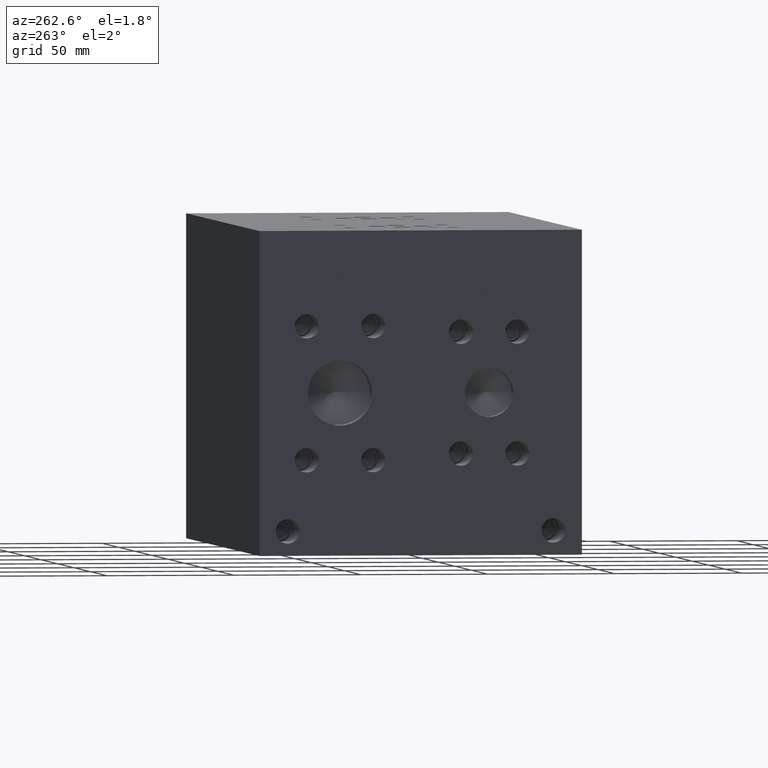
[diagram: clean part render]
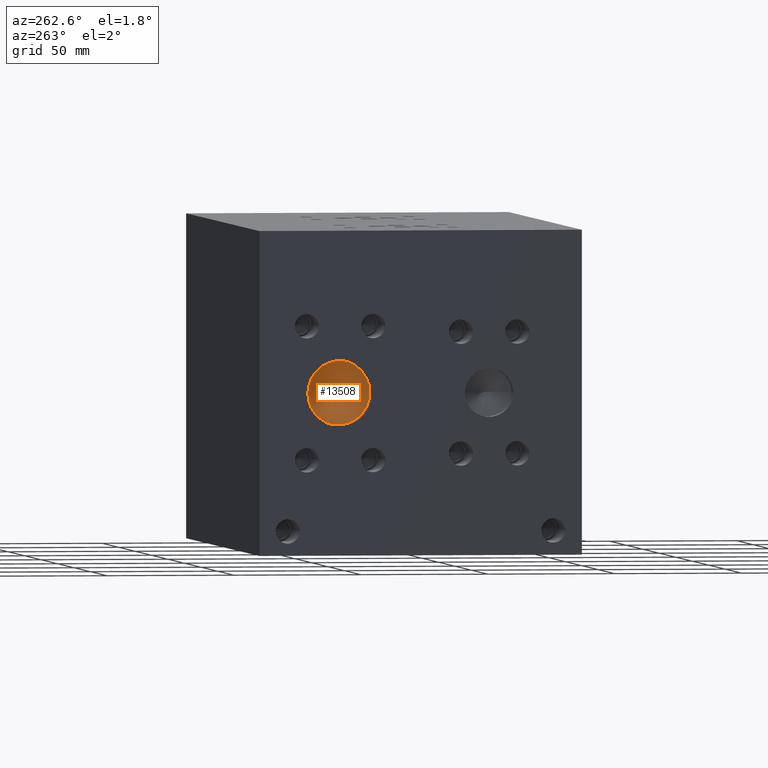
[diagram: same view with one face highlighted and labeled with its STEP entity id]
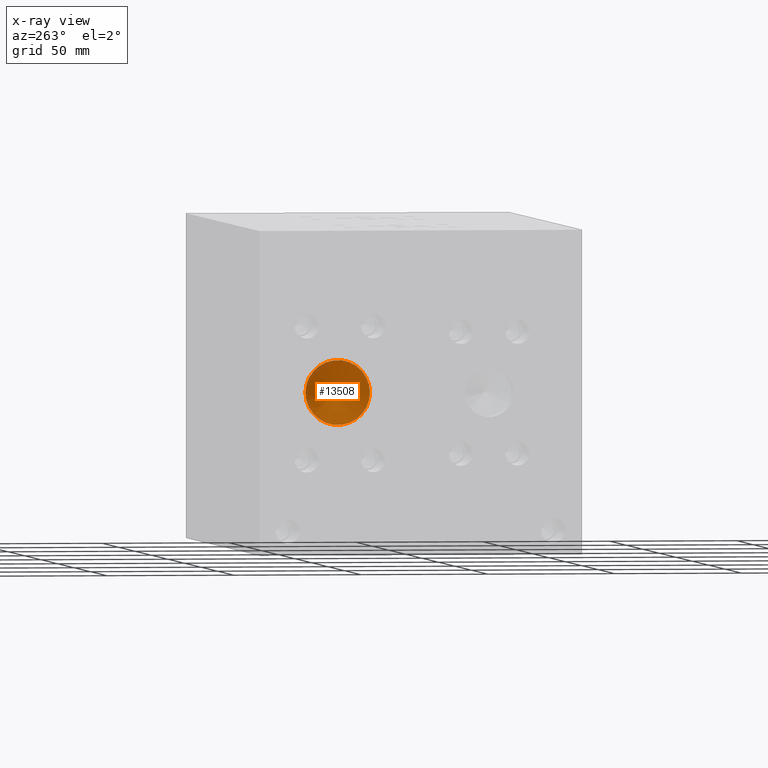
[diagram: x-ray of the same camera — body ghosted, the highlighted face saturated]
A machine part, auxiliary view. The second image highlights one B-rep face of the part: STEP entity #13508.
The next image is the same camera in x-ray: the body ghosted, the highlighted face saturated — about 0% of this face is hidden behind the body in this view.
In plain terms, the highlighted conical surface has half-angle 60 deg.
Its self-contained STEP definition (entity closure, byte-faithful):
#130=CONICAL_SURFACE('',#14206,6.35,1.0471975511966);
#303=CIRCLE('',#14207,12.7);
#304=CIRCLE('',#14208,12.7);
#1650=FACE_OUTER_BOUND('',#2453,.T.);
#2453=EDGE_LOOP('',(#11140,#11141,#11142,#11143));
#3775=LINE('',#22561,#4991);
#4991=VECTOR('',#16707,6.35);
#6147=VERTEX_POINT('',#22557);
#6148=VERTEX_POINT('',#22558);
#6149=VERTEX_POINT('',#22560);
#7927=EDGE_CURVE('',#6147,#6148,#303,.T.);
#7928=EDGE_CURVE('',#6148,#6149,#3775,.T.);
#7929=EDGE_CURVE('',#6148,#6147,#304,.T.);
#11140=ORIENTED_EDGE('',*,*,#7927,.T.);
#11141=ORIENTED_EDGE('',*,*,#7928,.T.);
#11142=ORIENTED_EDGE('',*,*,#7928,.F.);
#11143=ORIENTED_EDGE('',*,*,#7929,.T.);
#13508=ADVANCED_FACE('',(#1650),#130,.F.);
#14206=AXIS2_PLACEMENT_3D('',#22556,#16703,#16704);
#14207=AXIS2_PLACEMENT_3D('',#22559,#16705,#16706);
#14208=AXIS2_PLACEMENT_3D('',#22562,#16708,#16709);
#16703=DIRECTION('center_axis',(-1.,0.,0.));
#16704=DIRECTION('ref_axis',(0.,1.,0.));
#16705=DIRECTION('center_axis',(-1.,0.,0.));
#16706=DIRECTION('ref_axis',(0.,1.,0.));
#16707=DIRECTION('',(0.5,0.866025403784439,-1.06057523872491E-16));
#16708=DIRECTION('center_axis',(-1.,0.,0.));
#16709=DIRECTION('ref_axis',(0.,1.,0.));
#22556=CARTESIAN_POINT('Origin',(10.9985242093541,95.25,63.5));
#22557=CARTESIAN_POINT('',(7.33235,107.95,63.5));
#22558=CARTESIAN_POINT('',(7.33235,82.55,63.5));
#22559=CARTESIAN_POINT('Origin',(7.33235,95.25,63.5));
#22560=CARTESIAN_POINT('',(14.6646984187083,95.25,63.5));
#22561=CARTESIAN_POINT('',(10.9985242093541,88.9,63.5));
#22562=CARTESIAN_POINT('Origin',(7.33235,95.25,63.5));